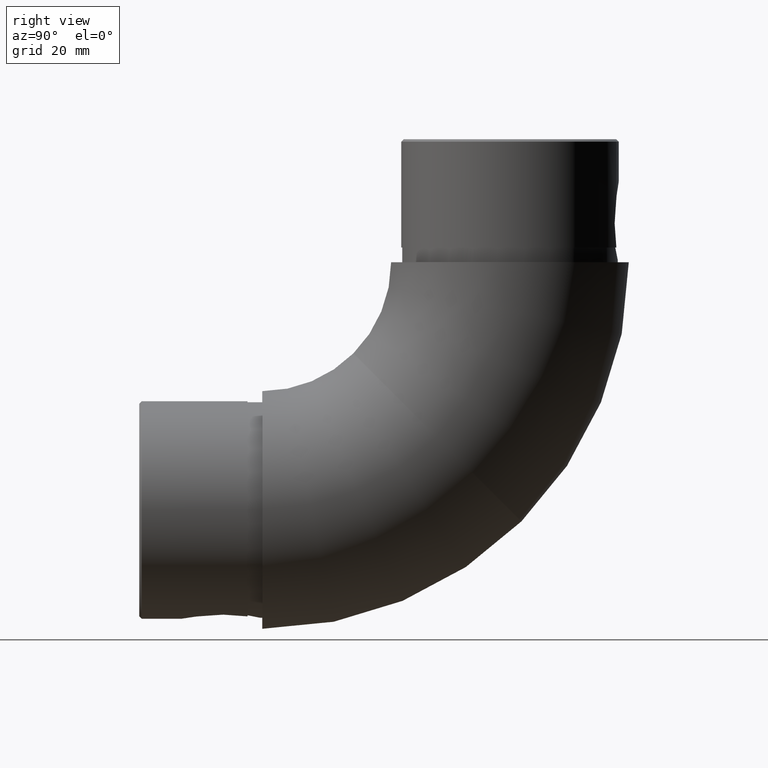
[diagram: clean part render]
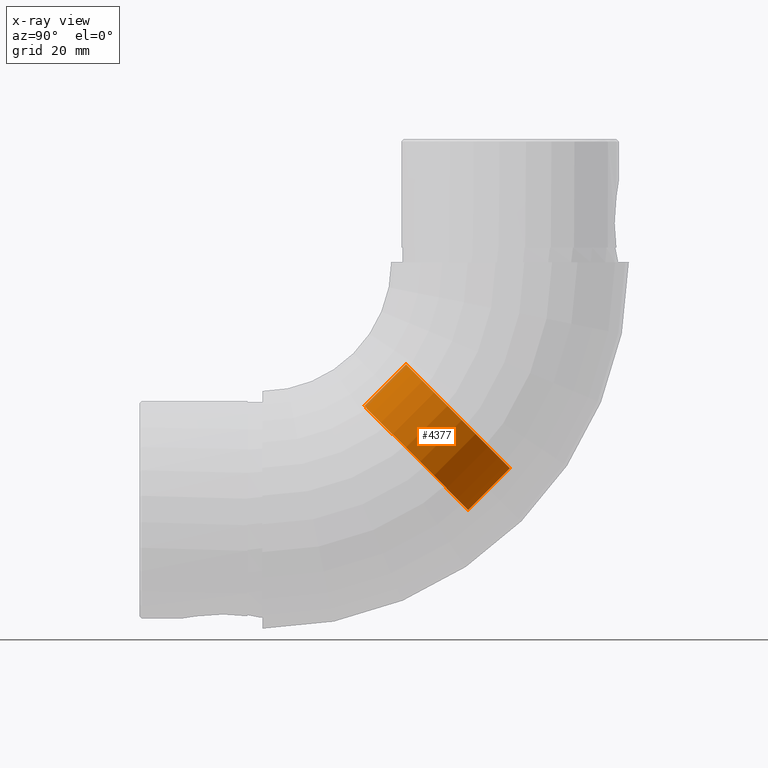
[diagram: x-ray — body ghosted, one internal face saturated and labeled with its STEP entity id]
A machine part, right view, then the same camera in x-ray: the body is ghosted and one INTERNAL B-rep face — a face not visible from any outside direction — is saturated and labeled: STEP entity #4377.
In plain terms, the highlighted cylindrical surface (bore or boss wall) has radius 15 mm, axis along (0, -0.7071, -0.7071).
Its self-contained STEP definition (entity closure, byte-faithful):
#1947 = CARTESIAN_POINT ( 'NONE',  ( 0.0000000000000000000, 6.500000000000000000, 0.0000000000000000000 ) ) ;
#2052 = DIRECTION ( 'NONE',  ( 0.0000000000000000000, -1.000000000000000000, 0.0000000000000000000 ) ) ;
#2685 = ORIENTED_EDGE ( 'NONE', *, *, #12316, .T. ) ;
#2831 = AXIS2_PLACEMENT_3D ( 'NONE', #9507, #2052, #3363 ) ;
#2955 = CIRCLE ( 'NONE', #5159, 15.00000000000000000 ) ;
#3363 = DIRECTION ( 'NONE',  ( 0.0000000000000000000, 0.0000000000000000000, 1.000000000000000000 ) ) ;
#4377 = ADVANCED_FACE ( 'NONE', ( #6364, #4623 ), #8300, .T. ) ;
#4623 = FACE_OUTER_BOUND ( 'NONE', #13744, .T. ) ;
#4851 = EDGE_LOOP ( 'NONE', ( #5627 ) ) ;
#4895 = AXIS2_PLACEMENT_3D ( 'NONE', #1947, #10653, #5540 ) ;
#5159 = AXIS2_PLACEMENT_3D ( 'NONE', #6371, #15066, #13912 ) ;
#5540 = DIRECTION ( 'NONE',  ( 0.0000000000000000000, 0.0000000000000000000, -1.000000000000000000 ) ) ;
#5627 = ORIENTED_EDGE ( 'NONE', *, *, #15840, .T. ) ;
#6364 = FACE_OUTER_BOUND ( 'NONE', #4851, .T. ) ;
#6371 = CARTESIAN_POINT ( 'NONE',  ( 0.0000000000000000000, -5.999999999999973400, 0.0000000000000000000 ) ) ;
#7070 = CIRCLE ( 'NONE', #2831, 15.00000000000000000 ) ;
#8300 = CYLINDRICAL_SURFACE ( 'NONE', #4895, 15.00000000000000000 ) ;
#8959 = VERTEX_POINT ( 'NONE', #9348 ) ;
#9348 = CARTESIAN_POINT ( 'NONE',  ( 0.0000000000000000000, 6.000000000000026600, 15.00000000000000000 ) ) ;
#9453 = CARTESIAN_POINT ( 'NONE',  ( 0.0000000000000000000, -5.999999999999973400, 15.00000000000000000 ) ) ;
#9507 = CARTESIAN_POINT ( 'NONE',  ( 0.0000000000000000000, 6.000000000000026600, 0.0000000000000000000 ) ) ;
#10653 = DIRECTION ( 'NONE',  ( -0.0000000000000000000, -1.000000000000000000, -0.0000000000000000000 ) ) ;
#12316 = EDGE_CURVE ( 'NONE', #8959, #8959, #7070, .T. ) ;
#13744 = EDGE_LOOP ( 'NONE', ( #2685 ) ) ;
#13912 = DIRECTION ( 'NONE',  ( 0.0000000000000000000, 0.0000000000000000000, 1.000000000000000000 ) ) ;
#15066 = DIRECTION ( 'NONE',  ( -0.0000000000000000000, 1.000000000000000000, -0.0000000000000000000 ) ) ;
#15792 = VERTEX_POINT ( 'NONE', #9453 ) ;
#15840 = EDGE_CURVE ( 'NONE', #15792, #15792, #2955, .T. ) ;